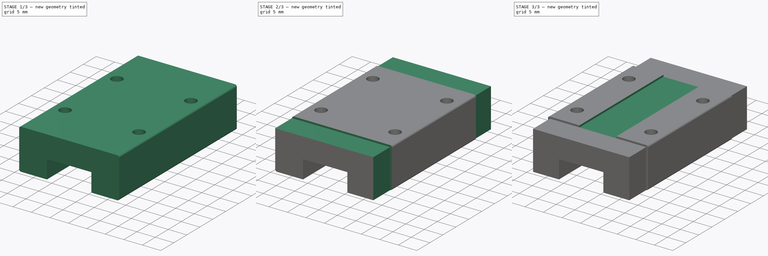
[diagram: build sequence overview — one tinted view per stage of 3, left to right]
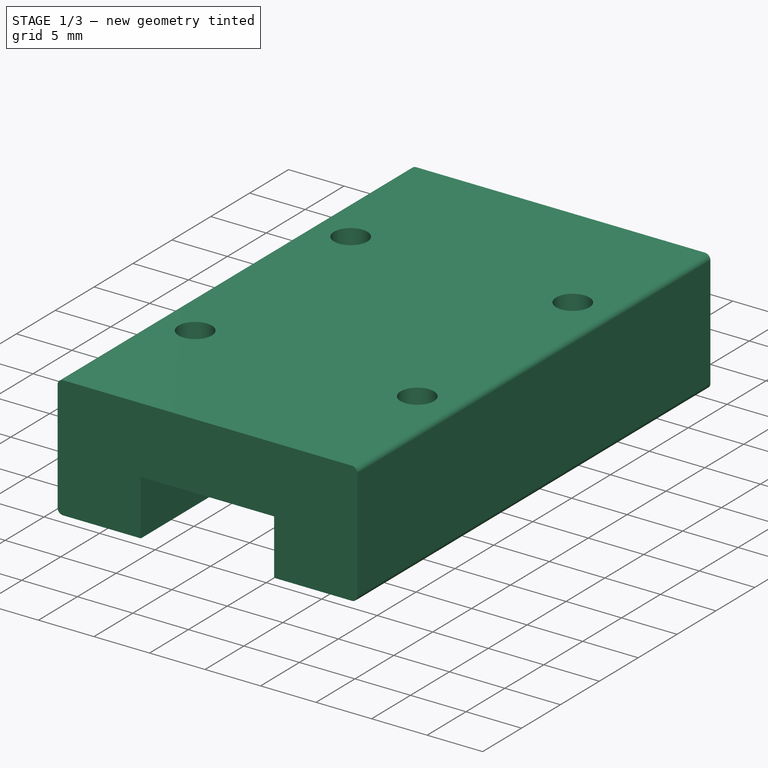
[diagram: stage 1 of 3 — iso view after this stage's code; geometry added in this stage tinted green]
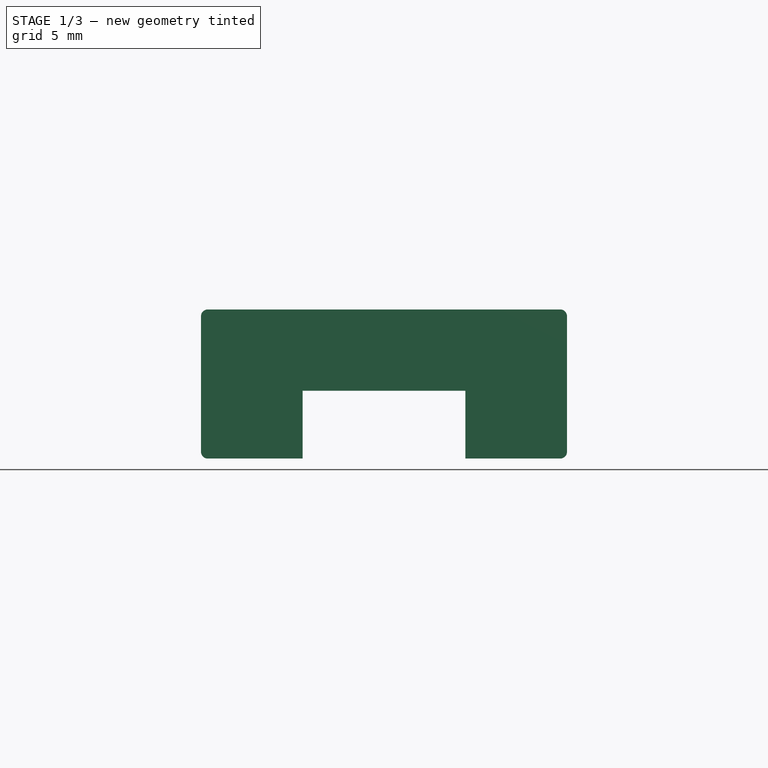
[diagram: stage 1 of 3 — front view after this stage's code; geometry added in this stage tinted green]
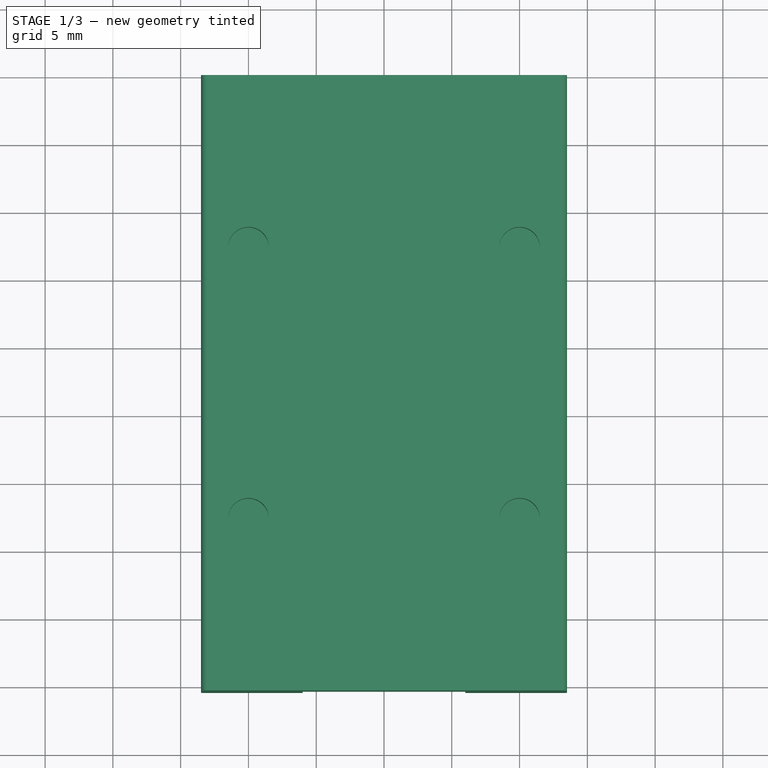
[diagram: stage 1 of 3 — top view after this stage's code; geometry added in this stage tinted green]
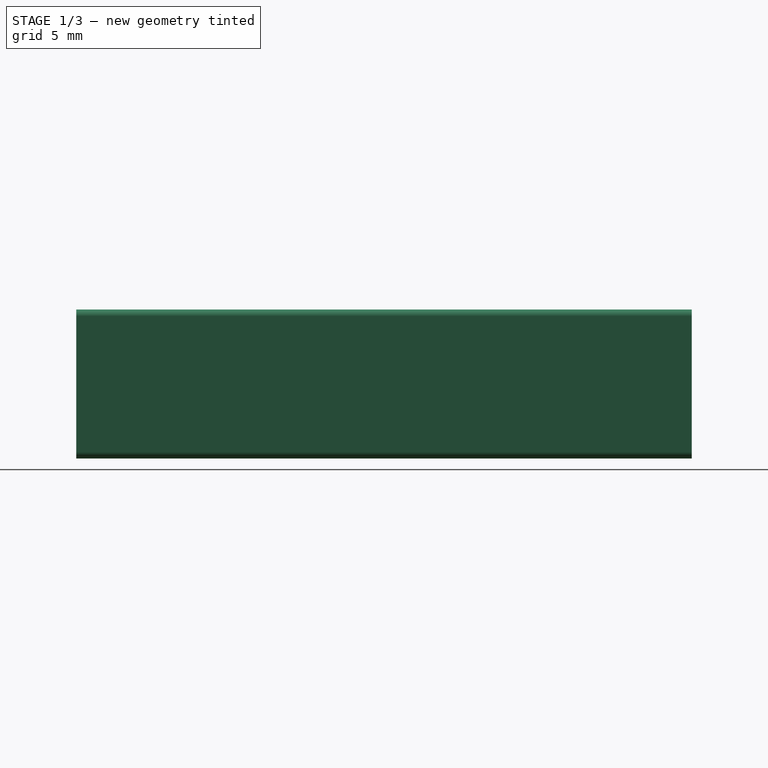
[diagram: stage 1 of 3 — right view after this stage's code; geometry added in this stage tinted green]
FCSTD DOCUMENT  (FreeCAD 0.19R)
Label: MGN12H
License: All rights reserved
LicenseURL: http://en.wikipedia.org/wiki/All_rights_reserved
objects: Sketcher::SketchObject×5, PartDesign::Pocket×4, PartDesign::Pad×1, PartDesign::Mirrored×1, PartDesign::Body×1
note: 17 computed .brp shape members not serialized (recipe doc carries the construction recipe); baked Part::Feature solids carry a one-line shape summary decoded from their .brp

FEATURE [Sketcher::SketchObject] Sketch
  FullyConstrained = true
  MapMode = 5
  Placement = pos=(0,0,0) rot=(1,0,0;1.5708rad)
  Support = -> [XZ_Plane]
  sketch-geometry (16):
    g0: LineSegment StartX=-13 StartY=0 StartZ=0 EndX=-6 EndY=0 EndZ=0
    g1: LineSegment StartX=6 StartY=0 StartZ=0 EndX=13 EndY=0 EndZ=0
    g2: LineSegment StartX=-13.5 StartY=0.5 StartZ=0 EndX=-13.5 EndY=10.5 EndZ=0
    g3: LineSegment StartX=13.5 StartY=0.5 StartZ=0 EndX=13.5 EndY=10.5 EndZ=0
    g4: LineSegment StartX=-13 StartY=11 StartZ=0 EndX=13 EndY=11 EndZ=0
    g5: LineSegment StartX=-6 StartY=0 StartZ=0 EndX=-6 EndY=5 EndZ=0
    g6: LineSegment StartX=-6 StartY=5 StartZ=0 EndX=6 EndY=5 EndZ=0
    g7: LineSegment StartX=6 StartY=5 StartZ=0 EndX=6 EndY=0 EndZ=0
    g8: ArcOfCircle CenterX=-13 CenterY=10.5 CenterZ=0 NormalX=0 NormalY=0 NormalZ=1 AngleXU=0 Radius=0.5 StartAngle=1.5708 EndAngle=3.14159
    g9: GeomPoint X=-13.5 Y=11 Z=0
    g10: ArcOfCircle CenterX=-13 CenterY=0.5 CenterZ=0 NormalX=0 NormalY=0 NormalZ=1 AngleXU=0 Radius=0.5 StartAngle=3.14159 EndAngle=4.71239
    g11: GeomPoint X=-13.5 Y=0 Z=0
    g12: ArcOfCircle CenterX=13 CenterY=10.5 CenterZ=0 NormalX=0 NormalY=0 NormalZ=1 AngleXU=0 Radius=0.5 StartAngle=-1.8e-15 EndAngle=1.5708
    g13: GeomPoint X=13.5 Y=11 Z=0
    g14: ArcOfCircle CenterX=13 CenterY=0.5 CenterZ=0 NormalX=0 NormalY=0 NormalZ=1 AngleXU=0 Radius=0.5 StartAngle=4.71239 EndAngle=6.28319
    g15: GeomPoint X=13.5 Y=0 Z=0
  constraints (39):
    c: PointOnObject(g11,g-1)
    c: PointOnObject(g0,g-1)
    c: PointOnObject(g15,g-1)
    c: Vertical(g2)
    c: Vertical(g3)
    c: Horizontal(g4)
    c: Coincident(g5,g0)
    c: Vertical(g5)
    c: Coincident(g6,g5)
    c: Horizontal(g6)
    c: Coincident(g7,g6)
    c: Coincident(g7,g1)
    c: Vertical(g7)
    c: PointOnObject(g9,g2)
    c: PointOnObject(g9,g4)
    c: Tangent(g2,g8) = 1.5708
    c: Tangent(g4,g8) = 1.5708
    c: PointOnObject(g11,g0)
    c: PointOnObject(g11,g2)
    c: Tangent(g0,g10) = -1.5708
    c: Tangent(g2,g10) = 1.5708
    c: PointOnObject(g13,g4)
    c: PointOnObject(g13,g3)
    c: Tangent(g4,g12) = 1.5708
    c: Tangent(g3,g12) = -1.5708
    c: PointOnObject(g15,g1)
    c: PointOnObject(g15,g3)
    c: Tangent(g1,g14) = -1.5708
    c: Tangent(g3,g14) = -1.5708
    c: Equal(g10,g8)
    c: Equal(g8,g14)
    c: Equal(g14,g12)
    c: Radius(g12) = 0.5
    c: DistanceX(g0,g1) = 12
    c: Symmetric(g0,g1,g-1)
    c: DistanceX(g11,g0) = 7.5
    c: Equal(g0,g1)
    c: DistanceY(g7,g7) = 5
    c: DistanceY(g2,g2) = 10
FEATURE [PartDesign::Pad] Pad
  Direction = (1,1,1)
  Length = 45.4
  Length2 = 100
  Placement = pos=(0,0,0) rot=(1,0,0;1.5708rad)
  Profile = -> Sketch
  Type = 0
FEATURE [Sketcher::SketchObject] Sketch001
  ExternalGeometry = -> [Pad]
  FullyConstrained = true
  MapMode = 5
  Placement = pos=(0,7.3e-15,11) rot=(0,0,1;3.14159rad)
  Support = -> [Pad]
  sketch-geometry (7):
    g0: Circle CenterX=-10 CenterY=12.7 CenterZ=0 NormalX=0 NormalY=0 NormalZ=1 AngleXU=0 Radius=1.5
    g1: Circle CenterX=10 CenterY=12.7 CenterZ=0 NormalX=0 NormalY=0 NormalZ=1 AngleXU=0 Radius=1.5
    g2: Circle CenterX=-10 CenterY=32.7 CenterZ=0 NormalX=0 NormalY=0 NormalZ=1 AngleXU=0 Radius=1.5
    g3: Circle CenterX=10 CenterY=32.7 CenterZ=0 NormalX=0 NormalY=0 NormalZ=1 AngleXU=0 Radius=1.5
    g4: LineSegment StartX=-10 StartY=12.7 StartZ=0 EndX=-13.5 EndY=12.7 EndZ=0
    g5: LineSegment StartX=-10 StartY=32.7 StartZ=0 EndX=-13.5 EndY=45.4 EndZ=0
    g6: LineSegment StartX=-10 StartY=12.7 StartZ=0 EndX=-13.5 EndY=0 EndZ=0
  constraints (19):
    c: Equal(g0,g1)
    c: Equal(g1,g2)
    c: Equal(g2,g3)
    c: Coincident(g4,g0)
    c: PointOnObject(g4,g-3)
    c: Horizontal(g4)
    c: DistanceX(g4,g4) = 3.5
    c: Diameter(g0) = 3
    c: Horizontal(g0,g1)
    c: DistanceX(g0,g1) = 20
    c: Vertical(g0,g2)
    c: Horizontal(g2,g3)
    c: Vertical(g3,g1)
    c: DistanceY(g0,g2) = 20
    c: Coincident(g5,g2)
    c: Coincident(g5,g-3)
    c: Coincident(g6,g0)
    c: Coincident(g6,g-3)
    c: Equal(g6,g5)
FEATURE [PartDesign::Pocket] Pocket
  BaseFeature = -> Pad
  Length = 3.5
  Length2 = 100
  Placement = pos=(0,0,0) rot=(1,0,0;1.5708rad)
  Profile = -> Sketch001
  Type = 0
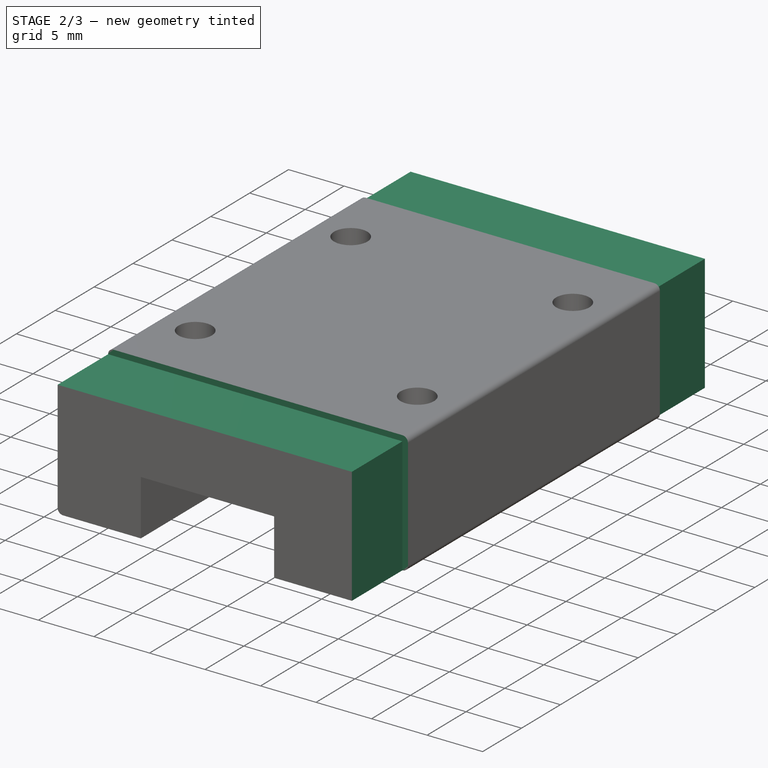
[diagram: stage 2 of 3 — iso view after this stage's code; geometry added in this stage tinted green]
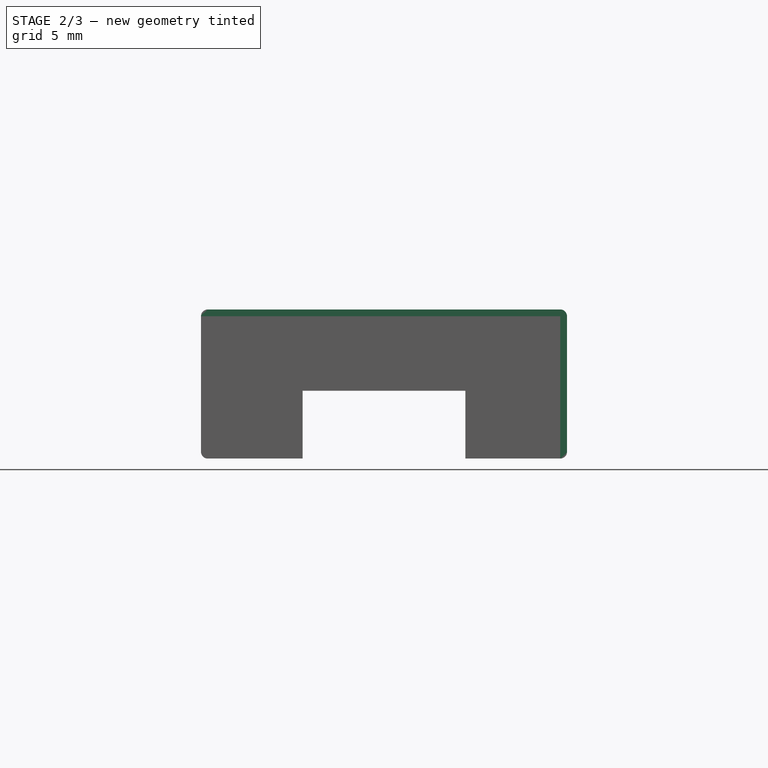
[diagram: stage 2 of 3 — front view after this stage's code; geometry added in this stage tinted green]
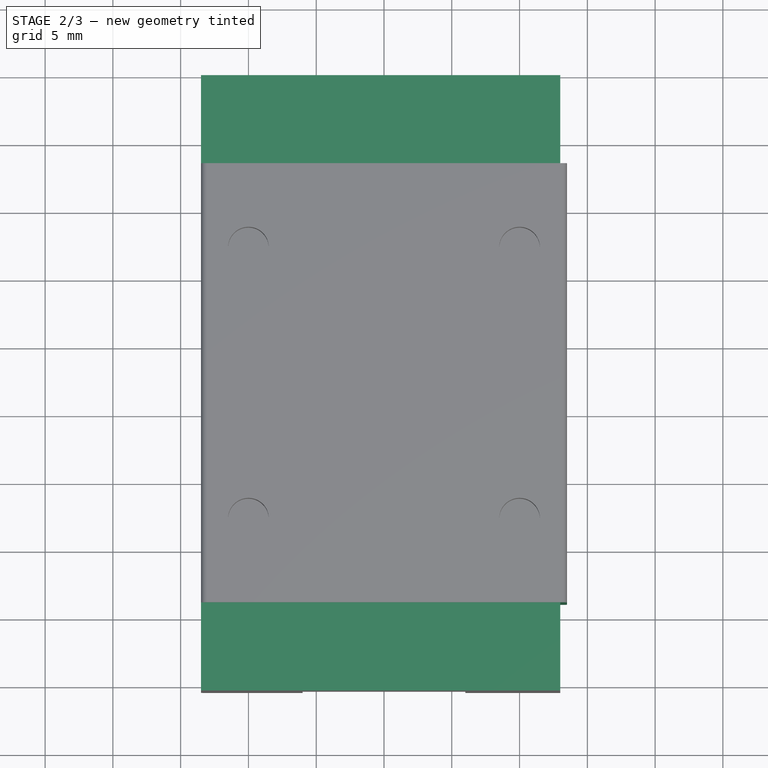
[diagram: stage 2 of 3 — top view after this stage's code; geometry added in this stage tinted green]
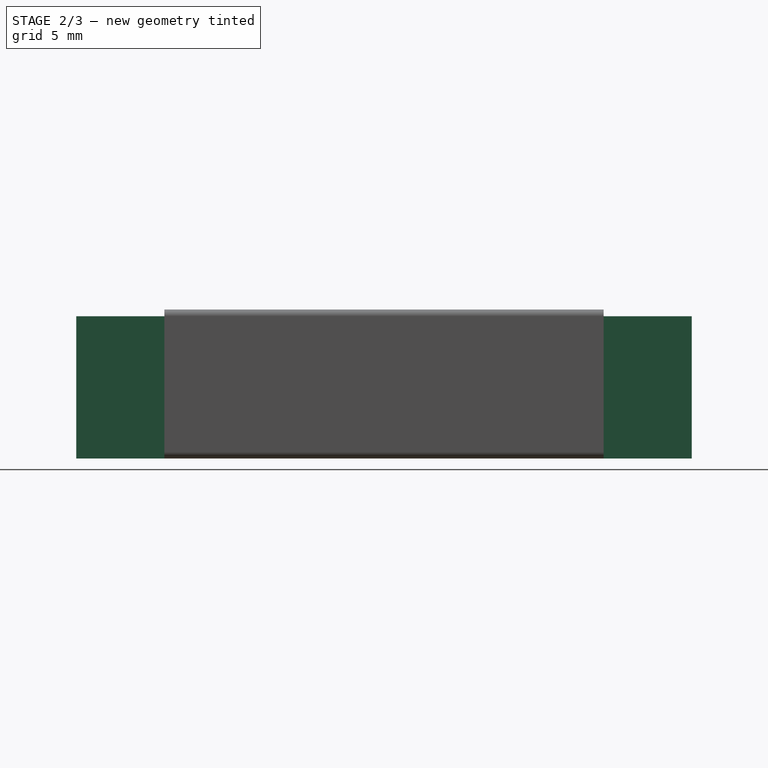
[diagram: stage 2 of 3 — right view after this stage's code; geometry added in this stage tinted green]
FEATURE [Sketcher::SketchObject] Sketch002
  ExternalGeometry = -> [Pocket]
  FullyConstrained = true
  MapMode = 5
  Placement = pos=(0,7.3e-15,11) rot=(0,0,1;3.14159rad)
  Support = -> [Pocket]
  sketch-geometry (8):
    g0: LineSegment StartX=-13.5 StartY=0 StartZ=0 EndX=13.5 EndY=0 EndZ=0
    g1: LineSegment StartX=13.5 StartY=0 StartZ=0 EndX=13.5 EndY=6.5 EndZ=0
    g2: LineSegment StartX=13.5 StartY=6.5 StartZ=0 EndX=-13.5 EndY=6.5 EndZ=0
    g3: LineSegment StartX=-13.5 StartY=6.5 StartZ=0 EndX=-13.5 EndY=0 EndZ=0
    g4: LineSegment StartX=-13.5 StartY=45.4 StartZ=0 EndX=13.5 EndY=45.4 EndZ=0
    g5: LineSegment StartX=13.5 StartY=45.4 StartZ=0 EndX=13.5 EndY=38.9 EndZ=0
    g6: LineSegment StartX=13.5 StartY=38.9 StartZ=0 EndX=-13.5 EndY=38.9 EndZ=0
    g7: LineSegment StartX=-13.5 StartY=38.9 StartZ=0 EndX=-13.5 EndY=45.4 EndZ=0
  constraints (22):
    c: Coincident(g0,g1)
    c: Coincident(g1,g2)
    c: Coincident(g2,g3)
    c: Coincident(g3,g0)
    c: Horizontal(g0)
    c: Horizontal(g2)
    c: Vertical(g1)
    c: Vertical(g3)
    c: Coincident(g0,g-3)
    c: PointOnObject(g1,g-4)
    c: DistanceY(g3,g3) = 6.5
    c: Coincident(g4,g5)
    c: Coincident(g5,g6)
    c: Coincident(g6,g7)
    c: Coincident(g7,g4)
    c: Horizontal(g4)
    c: Horizontal(g6)
    c: Vertical(g5)
    c: Vertical(g7)
    c: Coincident(g4,g-3)
    c: PointOnObject(g5,g-4)
    c: Equal(g3,g7)
FEATURE [PartDesign::Pocket] Pocket001
  BaseFeature = -> Pocket
  Length = 0.5
  Length2 = 100
  Placement = pos=(0,0,0) rot=(1,0,0;1.5708rad)
  Profile = -> Sketch002
  Type = 0
FEATURE [Sketcher::SketchObject] Sketch003
  ExternalGeometry = -> [Pocket001]
  FullyConstrained = true
  MapMode = 5
  Placement = pos=(13.5,0,0) rot=(0.707107,0,0.707107;3.14159rad)
  Support = -> [Pocket001]
  sketch-geometry (8):
    g0: LineSegment StartX=10.5 StartY=38.9 StartZ=0 EndX=0 EndY=38.9 EndZ=0
    g1: LineSegment StartX=0 StartY=38.9 StartZ=0 EndX=0 EndY=45.4 EndZ=0
    g2: LineSegment StartX=0 StartY=45.4 StartZ=0 EndX=10.5 EndY=45.4 EndZ=0
    g3: LineSegment StartX=10.5 StartY=45.4 StartZ=0 EndX=10.5 EndY=38.9 EndZ=0
    g4: LineSegment StartX=10.5 StartY=6.5 StartZ=0 EndX=0 EndY=6.5 EndZ=0
    g5: LineSegment StartX=0 StartY=6.5 StartZ=0 EndX=0 EndY=0 EndZ=0
    g6: LineSegment StartX=0 StartY=0 StartZ=0 EndX=10.5 EndY=0 EndZ=0
    g7: LineSegment StartX=10.5 StartY=0 StartZ=0 EndX=10.5 EndY=6.5 EndZ=0
  constraints (21):
    c: Coincident(g0,g1)
    c: Coincident(g1,g2)
    c: Coincident(g2,g3)
    c: Coincident(g3,g0)
    c: Horizontal(g0)
    c: Horizontal(g2)
    c: Vertical(g1)
    c: Vertical(g3)
    c: Coincident(g0,g-3)
    c: PointOnObject(g1,g-2)
    c: PointOnObject(g-5,g2)
    c: Coincident(g4,g5)
    c: Coincident(g5,g6)
    c: Coincident(g6,g7)
    c: Coincident(g7,g4)
    c: Horizontal(g4)
    c: Horizontal(g6)
    c: Vertical(g5)
    c: Vertical(g7)
    c: Coincident(g4,g-4)
    c: Coincident(g5,g-1)
FEATURE [PartDesign::Pocket] Pocket002
  BaseFeature = -> Pocket001
  Length = 0.5
  Length2 = 100
  Placement = pos=(0,0,0) rot=(1,0,0;1.5708rad)
  Profile = -> Sketch003
  Type = 0
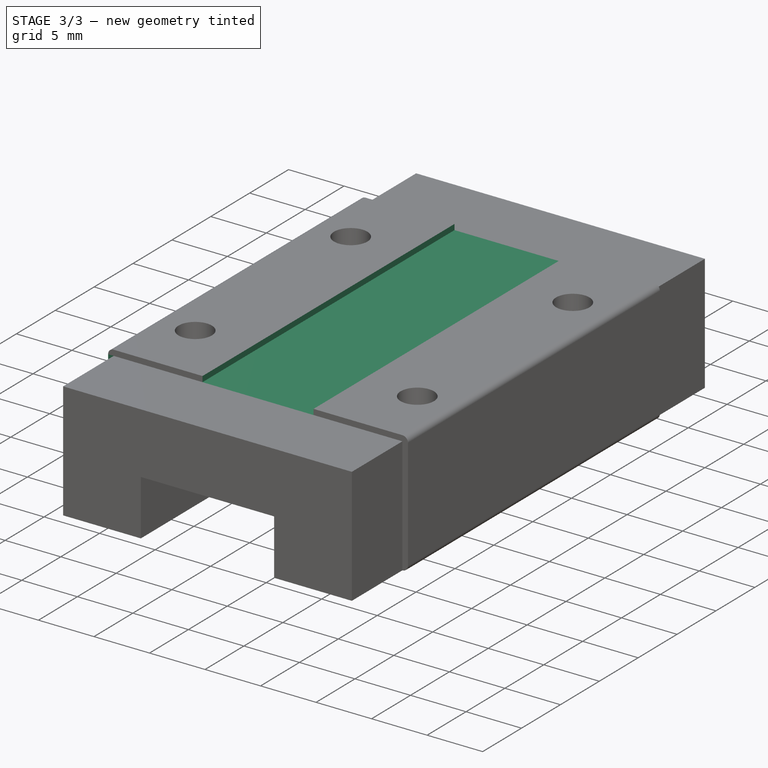
[diagram: stage 3 of 3 — iso view after this stage's code; geometry added in this stage tinted green]
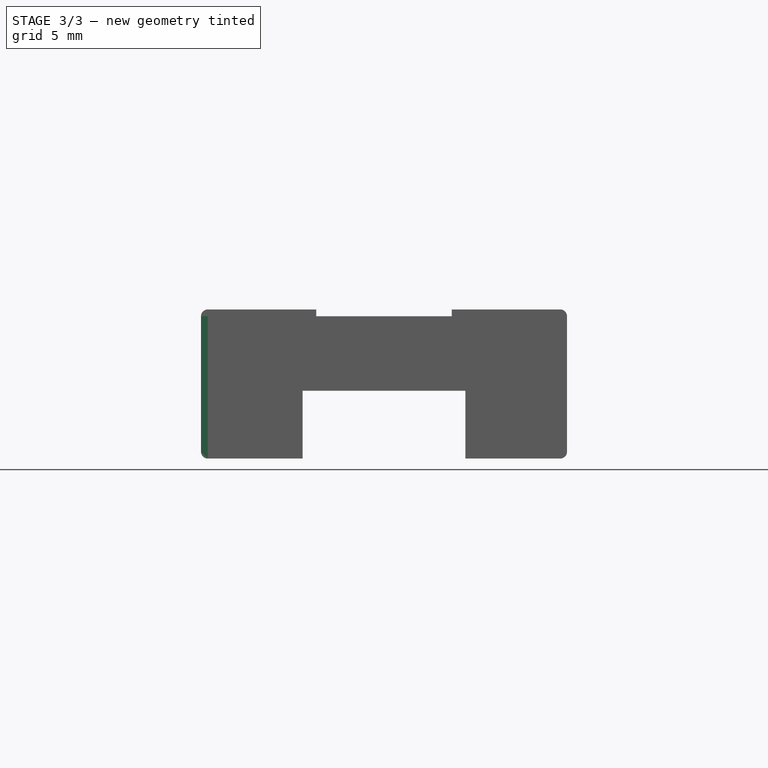
[diagram: stage 3 of 3 — front view after this stage's code; geometry added in this stage tinted green]
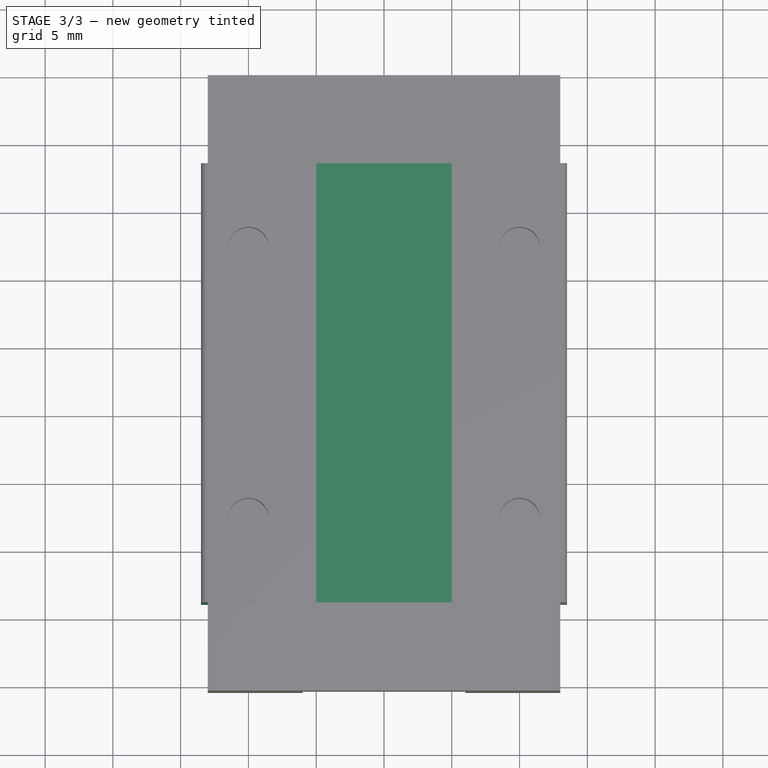
[diagram: stage 3 of 3 — top view after this stage's code; geometry added in this stage tinted green]
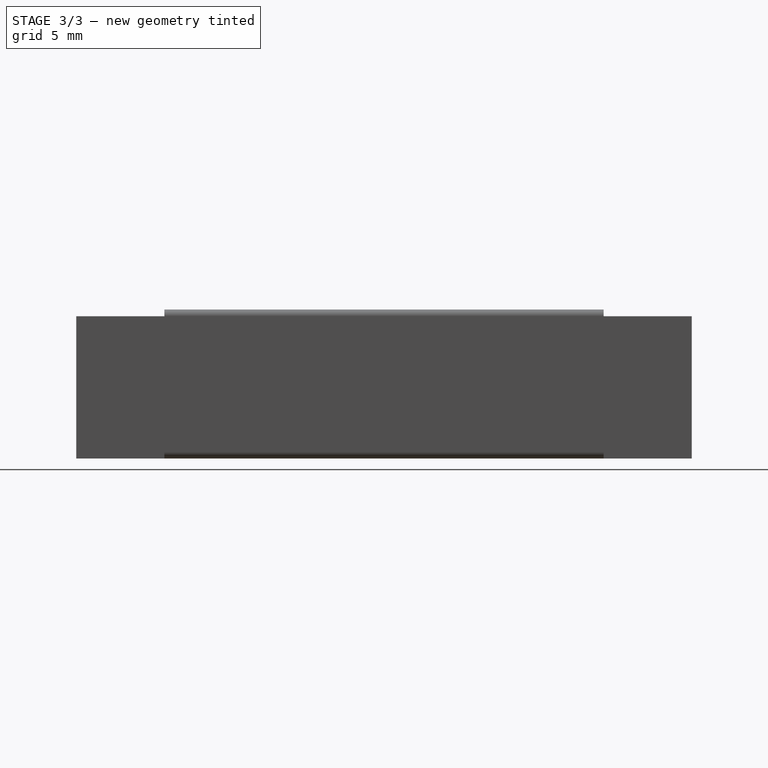
[diagram: stage 3 of 3 — right view after this stage's code; geometry added in this stage tinted green]
FEATURE [PartDesign::Mirrored] Mirrored
  BaseFeature = -> Pocket002
  MirrorPlane = -> YZ_Plane
  Originals = -> [Pocket002]
  Placement = pos=(0,0,0) rot=(1,0,0;1.5708rad)
FEATURE [Sketcher::SketchObject] Sketch004
  ExternalGeometry = -> [Mirrored]
  FullyConstrained = true
  MapMode = 5
  Placement = pos=(0,7.3e-15,11) rot=(0,0,1;3.14159rad)
  Support = -> [Mirrored]
  sketch-geometry (4):
    g0: LineSegment StartX=-5 StartY=38.9 StartZ=0 EndX=5 EndY=38.9 EndZ=0
    g1: LineSegment StartX=5 StartY=38.9 StartZ=0 EndX=5 EndY=6.5 EndZ=0
    g2: LineSegment StartX=5 StartY=6.5 StartZ=0 EndX=-5 EndY=6.5 EndZ=0
    g3: LineSegment StartX=-5 StartY=6.5 StartZ=0 EndX=-5 EndY=38.9 EndZ=0
  constraints (11):
    c: Coincident(g0,g1)
    c: Coincident(g1,g2)
    c: Coincident(g2,g3)
    c: Coincident(g3,g0)
    c: Horizontal(g0)
    c: Vertical(g1)
    c: Vertical(g3)
    c: PointOnObject(g0,g-3)
    c: PointOnObject(g1,g-4)
    c: Symmetric(g2,g1,g-2)
    c: DistanceX(g2,g2) = 10
FEATURE [PartDesign::Pocket] Pocket003
  BaseFeature = -> Mirrored
  Length = 0.5
  Length2 = 100
  Placement = pos=(0,0,0) rot=(1,0,0;1.5708rad)
  Profile = -> Sketch004
  Type = 0
FEATURE [PartDesign::Body] Body
  Group = -> [Sketch,Pad,Sketch001,Pocket,Sketch002,Pocket001,Sketch003,Pocket002,Mirrored,Sketch004,Pocket003]
  Origin = -> Origin
  Tip = -> Pocket003
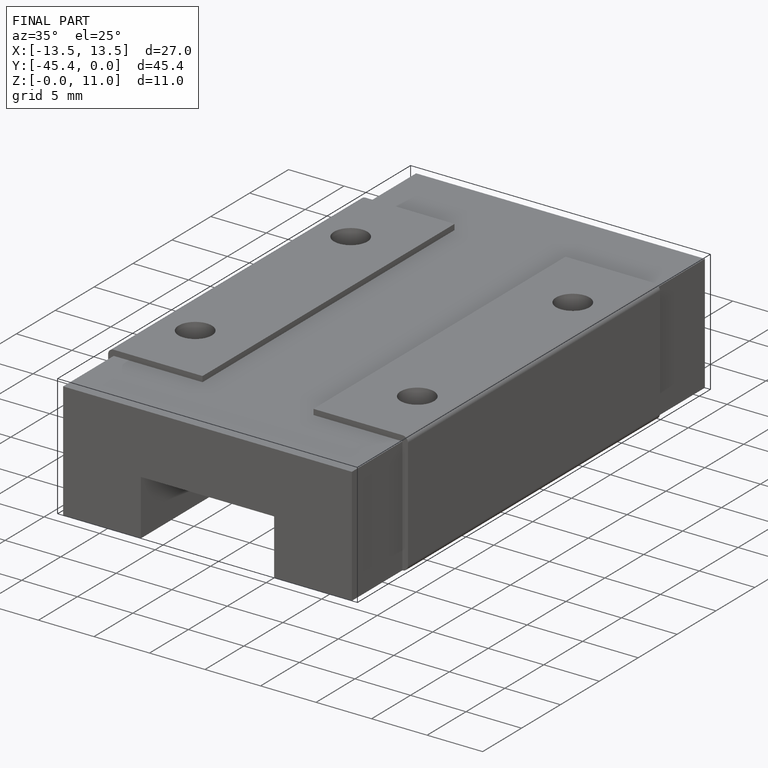
[diagram: finished part — iso view with bounding-box wireframe]
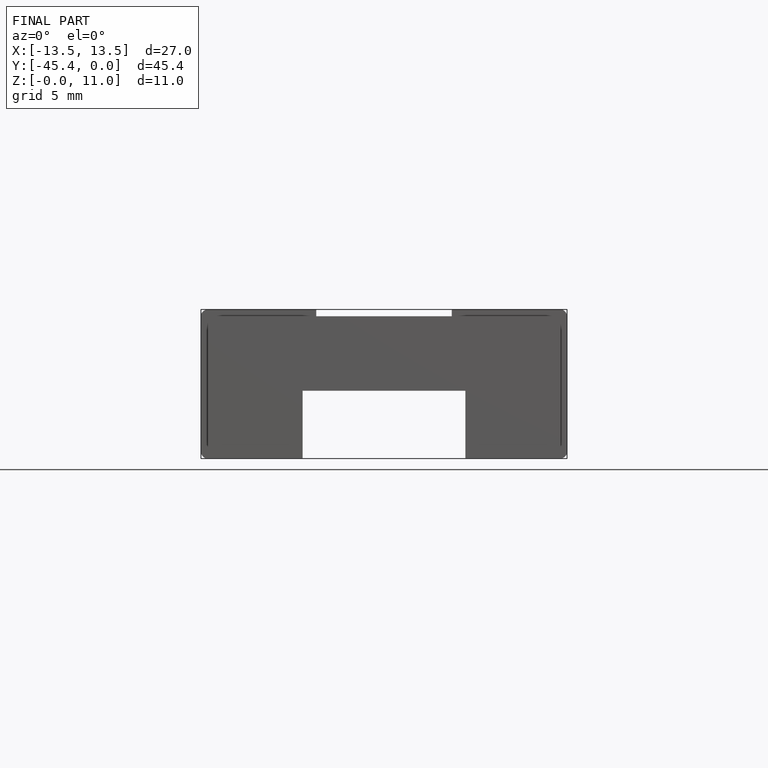
[diagram: finished part — front view with bounding-box wireframe]
